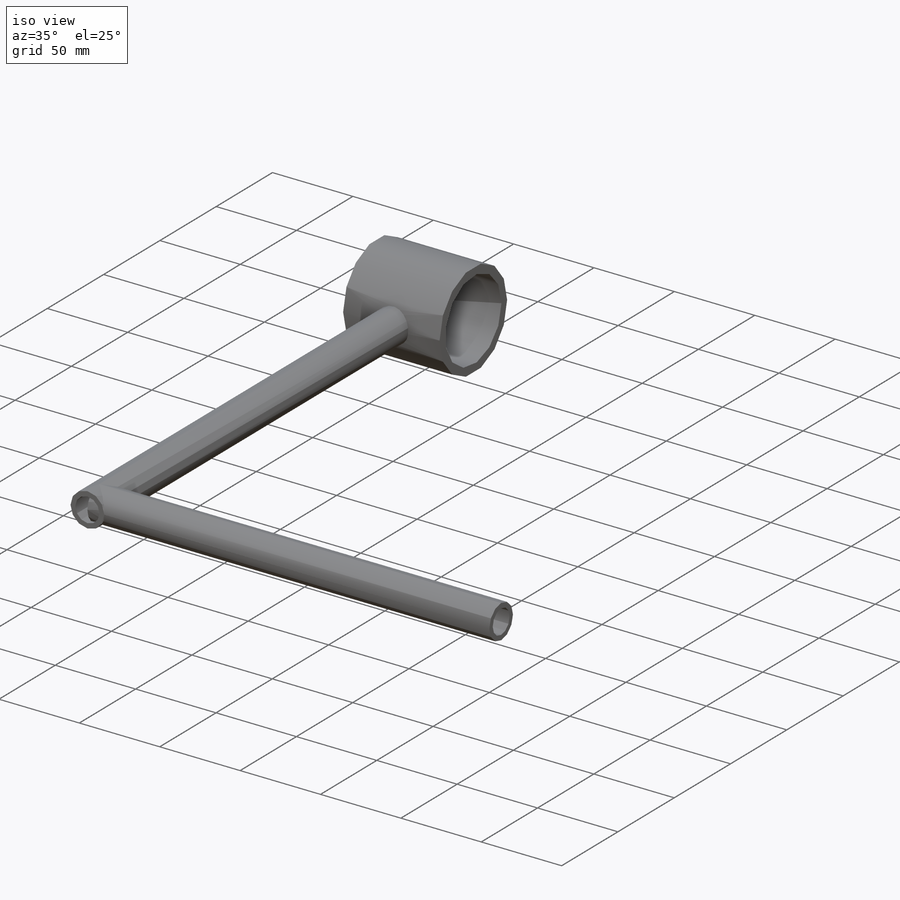
[diagram: iso view]
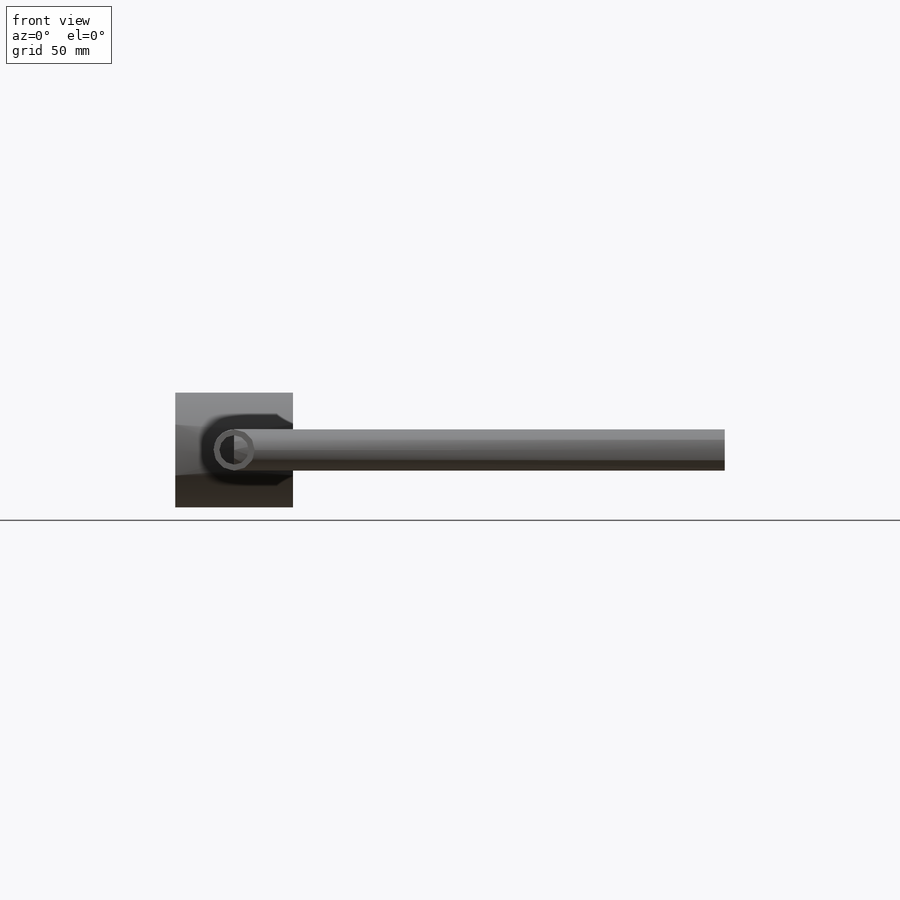
[diagram: front view]
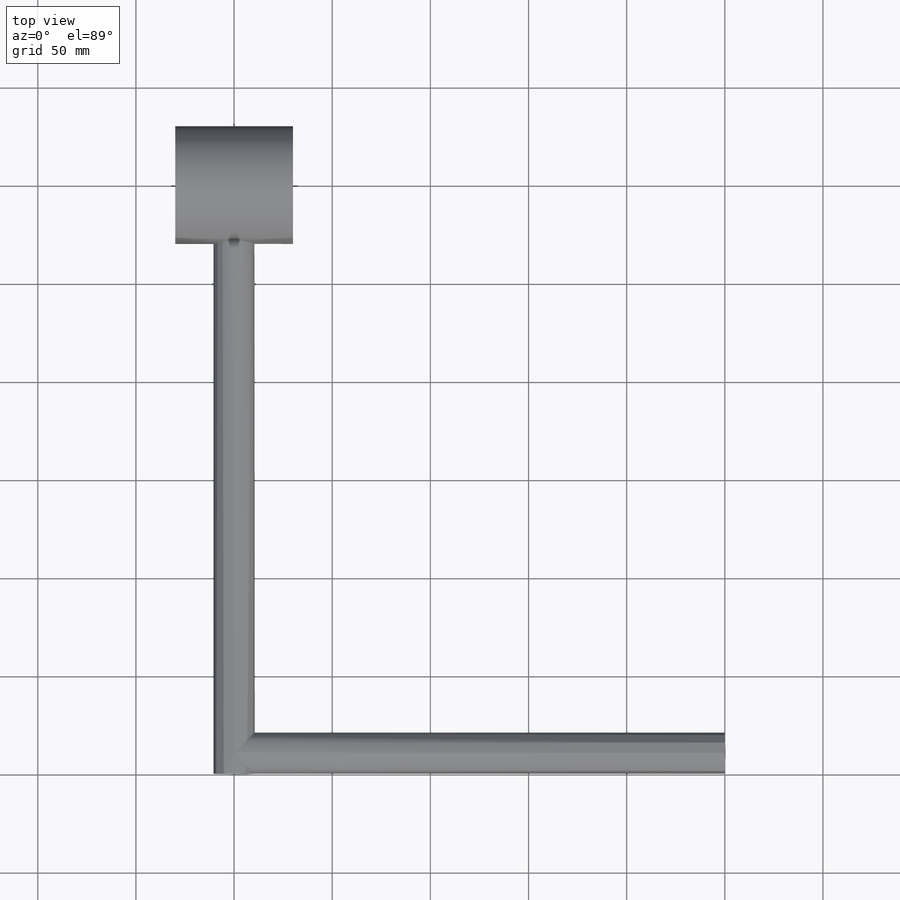
[diagram: top view]
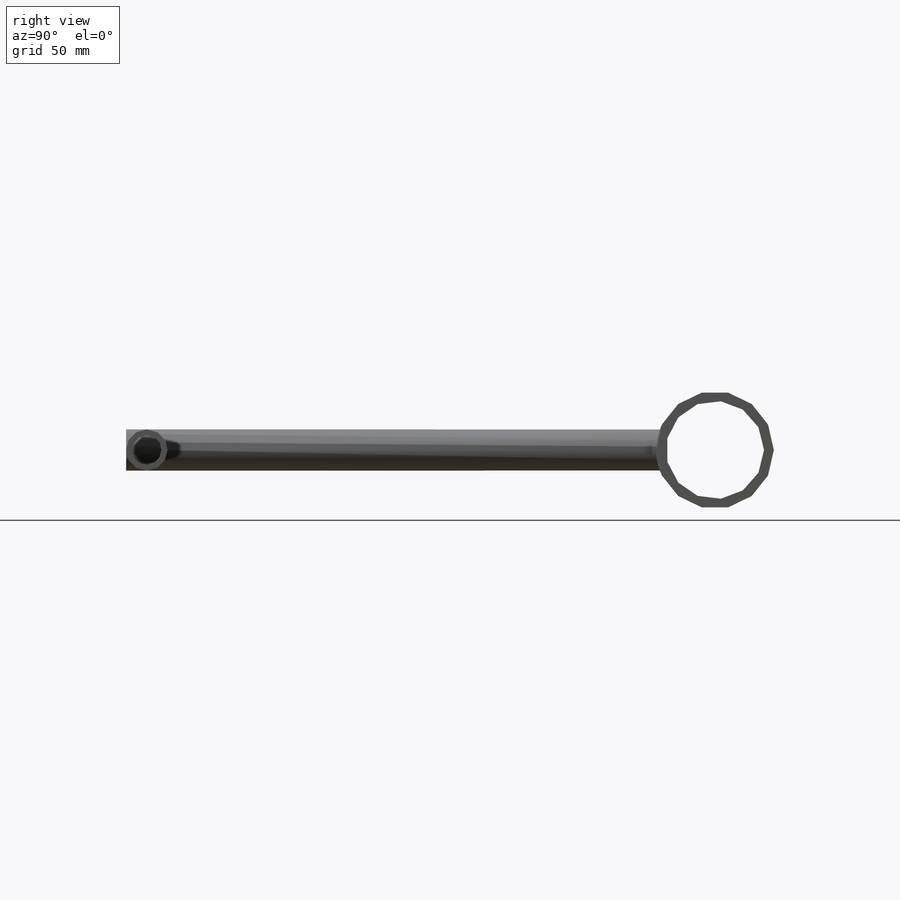
[diagram: right view]
SOLIDWORKS PART (.sldprt)
format: sldprt  version: not decoded by parser v0  size: 240,128 bytes
history: native  units: mm
features: sketch x5, plane x3, extrude x3, cut_extrude x2, material x1 (+8 scaffold rows collapsed)
feature tree (22):
  scaffold x8  (default folders/planes/origin — collapsed)
  material  "Материал <не указан>"
  plane  "Спереди"
  plane  "Сверху"
  plane  "Справа"
  sketch  "Эскиз1"  dims[D1=21.0mm]
  extrude  "Бобышка-Вытянуть1"  Depth=300mm
  sketch  "Эскиз2"  dims[D1=15.0mm]
  cut_extrude  "Вырез-Вытянуть1"  [1 undecoded]
  sketch  "Эскиз4"  dims[D1=60.0mm]
  extrude  "Бобышка-Вытянуть2"  Depth=60mm
  sketch  "Эскиз5"  dims[D1=50.0mm]
  cut_extrude  "Вырез-Вытянуть2"  [1 undecoded]
  sketch  "Эскиз7"  dims[c1.D1=21.0mm c1.D3=15.0mm c2.D1=~421.093691mm c2.D2=10.5mm]
  extrude  "Бобышка-Вытянуть4"  Depth=250mm
decode coverage: 8 of 10 modeling features carry decoded parameters
note: ~ marks probable driven/reference dimensions
note: 2 parameter values undecoded
note: suppression state not decoded; provenance and decode notes live in map.json
